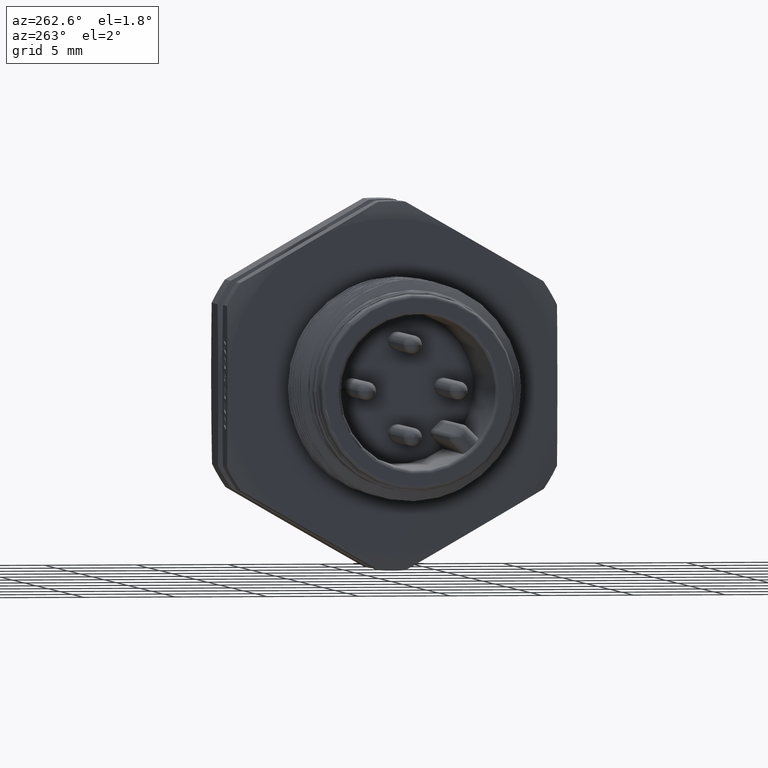
[diagram: clean part render]
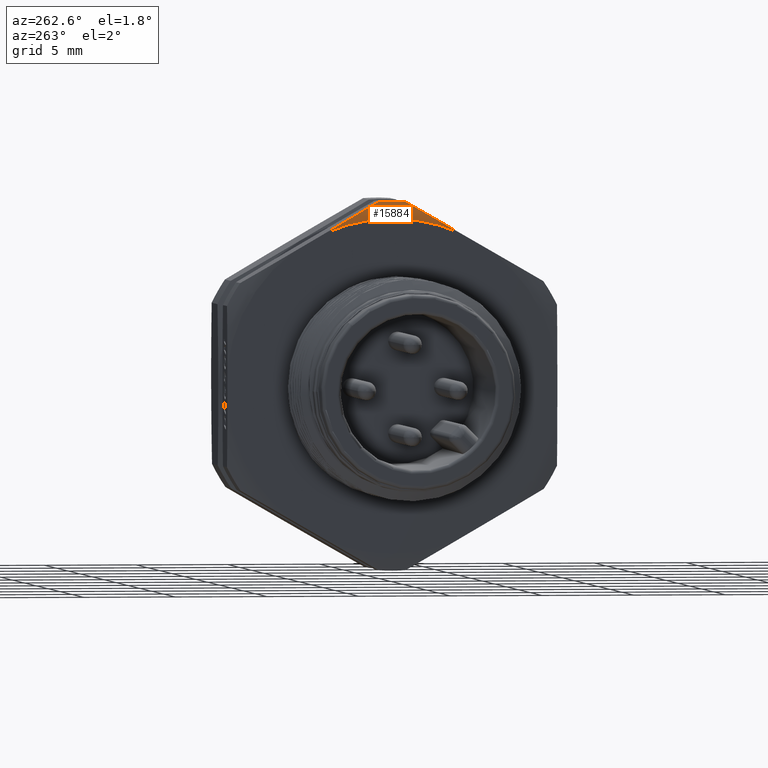
[diagram: same view with one face highlighted and labeled with its STEP entity id]
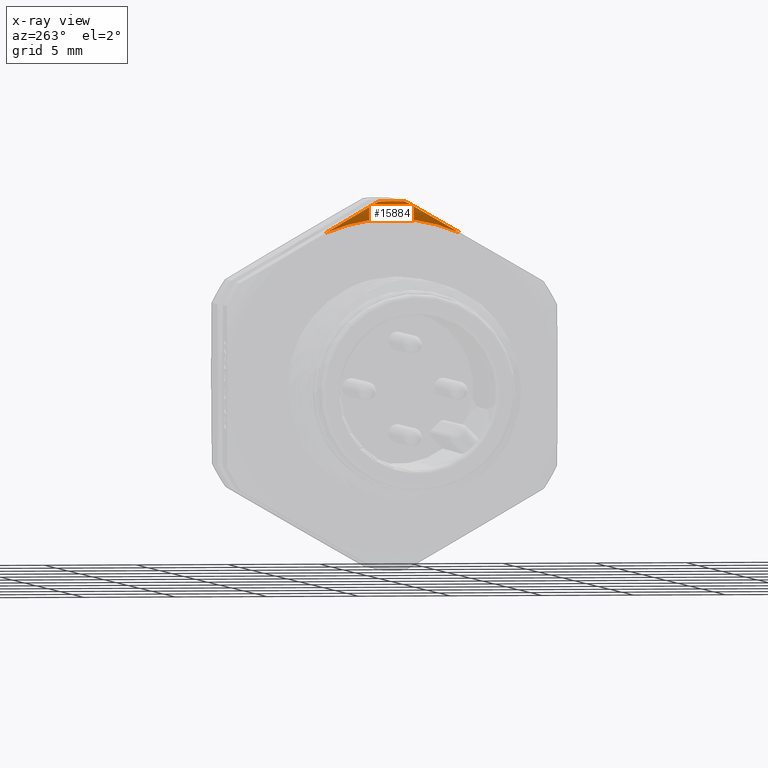
[diagram: x-ray of the same camera — body ghosted, the highlighted face saturated]
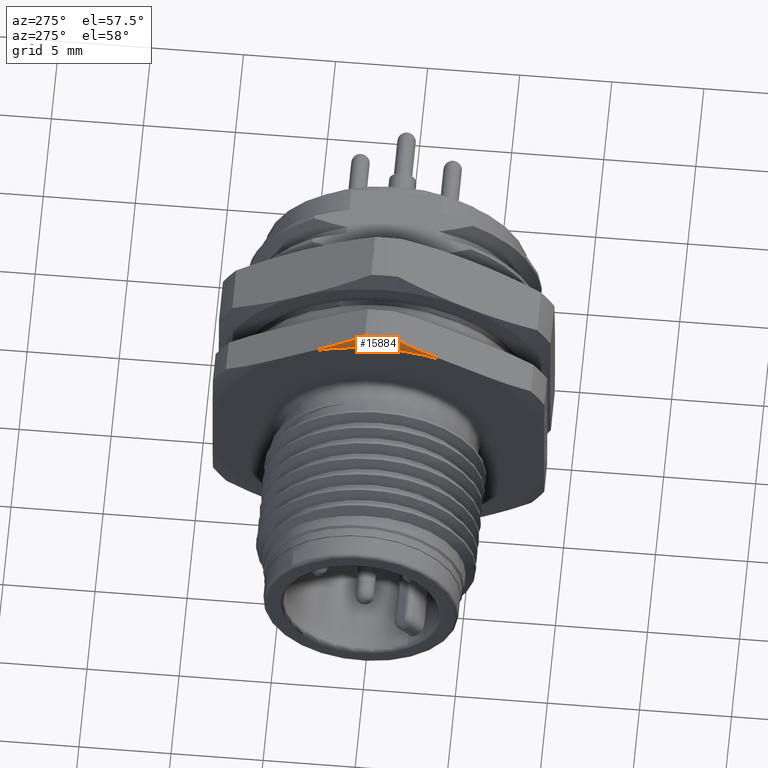
[diagram: same view with one face highlighted and labeled with its STEP entity id]
A machine part, auxiliary view. The second image highlights one B-rep face of the part: STEP entity #15884.
The next image is the same camera in x-ray: the body ghosted, the highlighted face saturated — about 0% of this face is hidden behind the body in this view.
A second angle (auxiliary view) of the same face is appended — the face is thin or edge-on in the first view.
In plain terms, the highlighted toroidal blend (fillet) surface has major radius 8.9802 mm and minor (blend) radius 3.5 mm.
Its self-contained STEP definition (entity closure, byte-faithful):
#705=CARTESIAN_POINT('',(9.399999999998E0,0.E0,0.E0));
#706=DIRECTION('',(1.E0,0.E0,0.E0));
#707=DIRECTION('',(0.E0,3.987447003604E-1,9.170619738788E-1));
#708=AXIS2_PLACEMENT_3D('',#705,#706,#707);
#710=CARTESIAN_POINT('',(9.399999999998E0,0.E0,0.E0));
#711=DIRECTION('',(1.E0,0.E0,0.E0));
#712=DIRECTION('',(0.E0,-7.361975077769E-14,1.E0));
#713=AXIS2_PLACEMENT_3D('',#710,#711,#712);
#1427=CARTESIAN_POINT('',(9.550951350362E0,0.E0,0.E0));
#1428=DIRECTION('',(1.E0,0.E0,0.E0));
#1429=DIRECTION('',(0.E0,7.455234445076E-2,9.972171017070E-1));
#1430=AXIS2_PLACEMENT_3D('',#1427,#1428,#1429);
#1432=CARTESIAN_POINT('',(9.550951350362E0,0.E0,0.E0));
#1433=DIRECTION('',(1.E0,0.E0,0.E0));
#1434=DIRECTION('',(0.E0,0.E0,1.E0));
#1435=AXIS2_PLACEMENT_3D('',#1432,#1433,#1434);
#1437=CARTESIAN_POINT('',(9.550951350363E0,-7.331944292831E-1,
9.973085075787E0));
#1438=CARTESIAN_POINT('',(9.509322584461E0,-1.005926707989E0,9.815995465123E0));
#1439=CARTESIAN_POINT('',(9.446468065060E0,-1.586428905317E0,9.481635100447E0));
#1440=CARTESIAN_POINT('',(9.405744683210E0,-2.576370432022E0,8.911443960081E0));
#1441=CARTESIAN_POINT('',(9.401046714677E0,-3.284414352473E0,8.503621518512E0));
#1442=CARTESIAN_POINT('',(9.399999999999E0,-3.653075084634E0,8.291278589553E0));
#1444=CARTESIAN_POINT('',(9.399999999999E0,3.612773501684E0,8.308918452427E0));
#1445=CARTESIAN_POINT('',(9.400995481056E0,3.286713556060E0,8.498061369847E0));
#1446=CARTESIAN_POINT('',(9.405589632290E0,2.639870432445E0,8.873286223915E0));
#1447=CARTESIAN_POINT('',(9.438543693449E0,1.715433532656E0,9.409539433006E0));
#1448=CARTESIAN_POINT('',(9.501198805687E0,1.069664744413E0,9.784141079806E0));
#1449=CARTESIAN_POINT('',(9.550951350363E0,7.455234445081E-1,9.972171017071E0));
#12366=CARTESIAN_POINT('',(9.399999999999E0,3.612773501684E0,8.308918452427E0));
#12367=VERTEX_POINT('',#12366);
#12368=CARTESIAN_POINT('',(9.399999999998E0,-6.670219931948E-13,
9.060367444179E0));
#12369=VERTEX_POINT('',#12368);
#12370=CARTESIAN_POINT('',(9.399999999998E0,-3.653075084635E0,
8.291278589552E0));
#12371=VERTEX_POINT('',#12370);
#12799=VERTEX_POINT('',#1449);
#12800=CARTESIAN_POINT('',(9.550951350363E0,-7.331944292831E-1,
9.973085075787E0));
#12802=VERTEX_POINT('',#12800);
#12806=CARTESIAN_POINT('',(9.550951350362E0,0.E0,1.E1));
#12807=VERTEX_POINT('',#12806);
#15871=CARTESIAN_POINT('',(1.289908138955E1,0.E0,0.E0));
#15872=DIRECTION('',(1.E0,0.E0,0.E0));
#15873=DIRECTION('',(0.E0,0.E0,1.E0));
#15874=AXIS2_PLACEMENT_3D('',#15871,#15872,#15873);
#15875=TOROIDAL_SURFACE('',#15874,8.980183722090E0,3.5E0);
#15876=ORIENTED_EDGE('',*,*,#15841,.T.);
#15877=ORIENTED_EDGE('',*,*,#15839,.T.);
#15878=ORIENTED_EDGE('',*,*,#15859,.T.);
#15879=ORIENTED_EDGE('',*,*,#15197,.F.);
#15880=ORIENTED_EDGE('',*,*,#15195,.F.);
#15881=ORIENTED_EDGE('',*,*,#15817,.T.);
#15882=EDGE_LOOP('',(#15876,#15877,#15878,#15879,#15880,#15881));
#15883=FACE_OUTER_BOUND('',#15882,.F.);
#15884=ADVANCED_FACE('',(#15883),#15875,.T.);
#709=CIRCLE('',#708,9.060367444179E0);
#714=CIRCLE('',#713,9.060367444179E0);
#1431=CIRCLE('',#1430,1.E1);
#1436=CIRCLE('',#1435,1.E1);
#1443=B_SPLINE_CURVE_WITH_KNOTS('',3,(#1437,#1438,#1439,#1440,#1441,#1442),
.UNSPECIFIED.,.F.,.F.,(4,1,1,4),(0.E0,3.333333333333E-1,6.666666666667E-1,1.E0),
.UNSPECIFIED.);
#1450=B_SPLINE_CURVE_WITH_KNOTS('',3,(#1444,#1445,#1446,#1447,#1448,#1449),
.UNSPECIFIED.,.F.,.F.,(4,1,1,4),(0.E0,3.333333333333E-1,6.666666666667E-1,1.E0),
.UNSPECIFIED.);
#15195=EDGE_CURVE('',#12367,#12369,#709,.T.);
#15197=EDGE_CURVE('',#12369,#12371,#714,.T.);
#15817=EDGE_CURVE('',#12367,#12799,#1450,.T.);
#15839=EDGE_CURVE('',#12807,#12802,#1436,.T.);
#15841=EDGE_CURVE('',#12799,#12807,#1431,.T.);
#15859=EDGE_CURVE('',#12802,#12371,#1443,.T.);